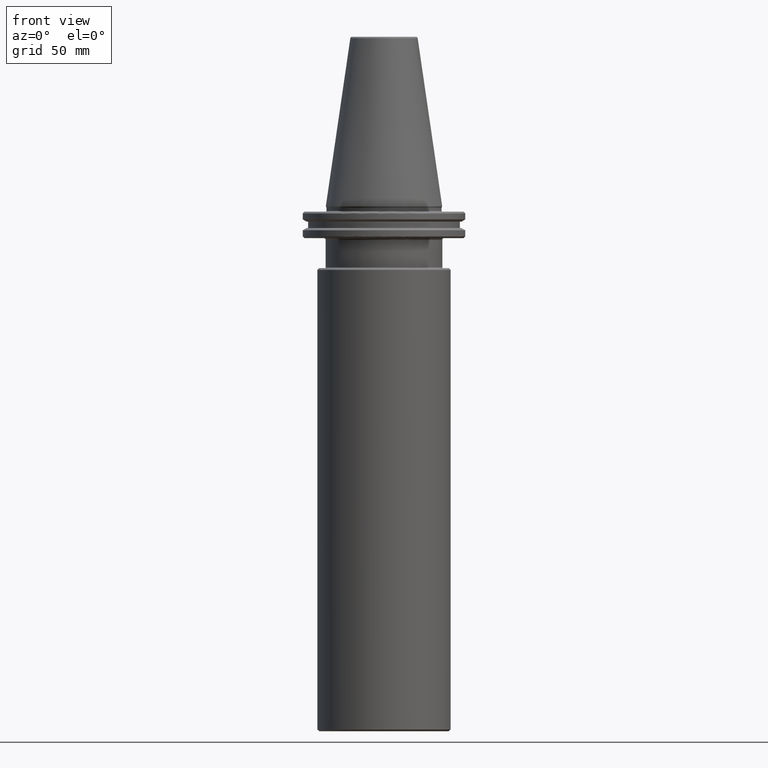
[diagram: clean part render]
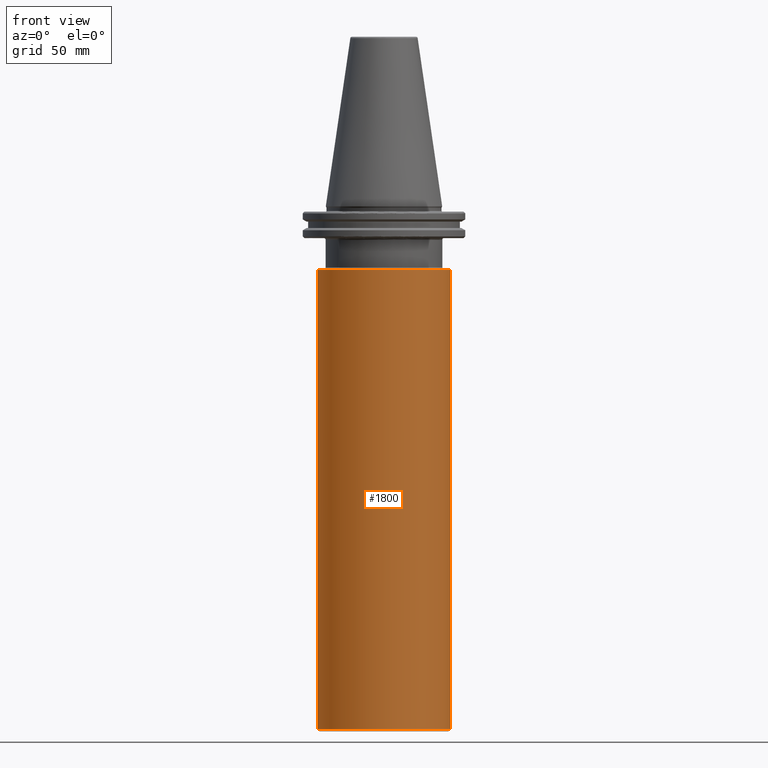
[diagram: same view with one face highlighted and labeled with its STEP entity id]
A machine part, front view. The second image highlights one B-rep face of the part: STEP entity #1800.
In plain terms, the highlighted cylindrical surface (partial cylindrical patch) has radius 40 mm, axis along (0, 0, 1).
Its self-contained STEP definition (entity closure, byte-faithful):
#108 = CARTESIAN_POINT ( 'NONE',  ( 0.0000000000000000000, 0.0000000000000000000, 0.0000000000000000000 ) ) ;
#235 = DIRECTION ( 'NONE',  ( 1.000000000000000000, 0.0000000000000000000, 0.0000000000000000000 ) ) ;
#248 = EDGE_CURVE ( 'NONE', #446, #3582, #2223, .T. ) ;
#350 = ORIENTED_EDGE ( 'NONE', *, *, #2192, .T. ) ;
#446 = VERTEX_POINT ( 'NONE', #3391 ) ;
#524 = DIRECTION ( 'NONE',  ( 0.0000000000000000000, 0.0000000000000000000, 1.000000000000000000 ) ) ;
#626 = DIRECTION ( 'NONE',  ( 1.000000000000000000, 0.0000000000000000000, 0.0000000000000000000 ) ) ;
#645 = CARTESIAN_POINT ( 'NONE',  ( 40.00000000000000000, 0.0000000000000000000, -314.0000000000000000 ) ) ;
#699 = ORIENTED_EDGE ( 'NONE', *, *, #2603, .T. ) ;
#734 = VECTOR ( 'NONE', #1781, 1000.000000000000000 ) ;
#754 = AXIS2_PLACEMENT_3D ( 'NONE', #1058, #1053, #1047 ) ;
#858 = EDGE_CURVE ( 'NONE', #2816, #3261, #1997, .T. ) ;
#1000 = DIRECTION ( 'NONE',  ( 1.000000000000000000, 0.0000000000000000000, 0.0000000000000000000 ) ) ;
#1003 = CARTESIAN_POINT ( 'NONE',  ( -40.00000000000000000, 4.898587196589413000E-015, -314.0000000000000000 ) ) ;
#1022 = DIRECTION ( 'NONE',  ( 0.0000000000000000000, 0.0000000000000000000, 1.000000000000000000 ) ) ;
#1047 = DIRECTION ( 'NONE',  ( 1.000000000000000000, 0.0000000000000000000, 0.0000000000000000000 ) ) ;
#1053 = DIRECTION ( 'NONE',  ( -0.0000000000000000000, -0.0000000000000000000, -1.000000000000000000 ) ) ;
#1058 = CARTESIAN_POINT ( 'NONE',  ( 0.0000000000000000000, 0.0000000000000000000, -38.10000000000000900 ) ) ;
#1090 = AXIS2_PLACEMENT_3D ( 'NONE', #108, #524, #626 ) ;
#1115 = CYLINDRICAL_SURFACE ( 'NONE', #1090, 40.00000000000000000 ) ;
#1186 = VERTEX_POINT ( 'NONE', #1003 ) ;
#1283 = EDGE_LOOP ( 'NONE', ( #2658, #350, #3146, #699, #1991 ) ) ;
#1374 = AXIS2_PLACEMENT_3D ( 'NONE', #3144, #1022, #1000 ) ;
#1386 = DIRECTION ( 'NONE',  ( 0.0000000000000000000, 0.0000000000000000000, 1.000000000000000000 ) ) ;
#1490 = AXIS2_PLACEMENT_3D ( 'NONE', #2842, #3047, #235 ) ;
#1781 = DIRECTION ( 'NONE',  ( 0.0000000000000000000, 0.0000000000000000000, 1.000000000000000000 ) ) ;
#1800 = ADVANCED_FACE ( 'NONE', ( #2084 ), #1115, .T. ) ;
#1991 = ORIENTED_EDGE ( 'NONE', *, *, #248, .T. ) ;
#1997 = CIRCLE ( 'NONE', #1490, 40.00000000000000000 ) ;
#2084 = FACE_OUTER_BOUND ( 'NONE', #1283, .T. ) ;
#2165 = CARTESIAN_POINT ( 'NONE',  ( -40.00000000000000000, 0.0000000000000000000, -38.10000000000000900 ) ) ;
#2192 = EDGE_CURVE ( 'NONE', #1186, #2816, #3465, .T. ) ;
#2223 = CIRCLE ( 'NONE', #754, 40.00000000000000000 ) ;
#2284 = LINE ( 'NONE', #2640, #734 ) ;
#2603 = EDGE_CURVE ( 'NONE', #3261, #446, #3123, .T. ) ;
#2640 = CARTESIAN_POINT ( 'NONE',  ( -40.00000000000000000, 4.898587196589413000E-015, 0.0000000000000000000 ) ) ;
#2658 = ORIENTED_EDGE ( 'NONE', *, *, #3161, .F. ) ;
#2783 = CARTESIAN_POINT ( 'NONE',  ( 0.0000000000000000000, -40.00000000000005700, -314.0000000000000000 ) ) ;
#2816 = VERTEX_POINT ( 'NONE', #2783 ) ;
#2842 = CARTESIAN_POINT ( 'NONE',  ( 0.0000000000000000000, 0.0000000000000000000, -314.0000000000000000 ) ) ;
#3047 = DIRECTION ( 'NONE',  ( 0.0000000000000000000, 0.0000000000000000000, 1.000000000000000000 ) ) ;
#3123 = LINE ( 'NONE', #3190, #3633 ) ;
#3144 = CARTESIAN_POINT ( 'NONE',  ( 0.0000000000000000000, 0.0000000000000000000, -314.0000000000000000 ) ) ;
#3146 = ORIENTED_EDGE ( 'NONE', *, *, #858, .T. ) ;
#3161 = EDGE_CURVE ( 'NONE', #1186, #3582, #2284, .T. ) ;
#3190 = CARTESIAN_POINT ( 'NONE',  ( 40.00000000000000000, 0.0000000000000000000, 0.0000000000000000000 ) ) ;
#3261 = VERTEX_POINT ( 'NONE', #645 ) ;
#3391 = CARTESIAN_POINT ( 'NONE',  ( 40.00000000000000000, 4.898587196589413000E-015, -38.10000000000000900 ) ) ;
#3465 = CIRCLE ( 'NONE', #1374, 40.00000000000000000 ) ;
#3582 = VERTEX_POINT ( 'NONE', #2165 ) ;
#3633 = VECTOR ( 'NONE', #1386, 1000.000000000000000 ) ;